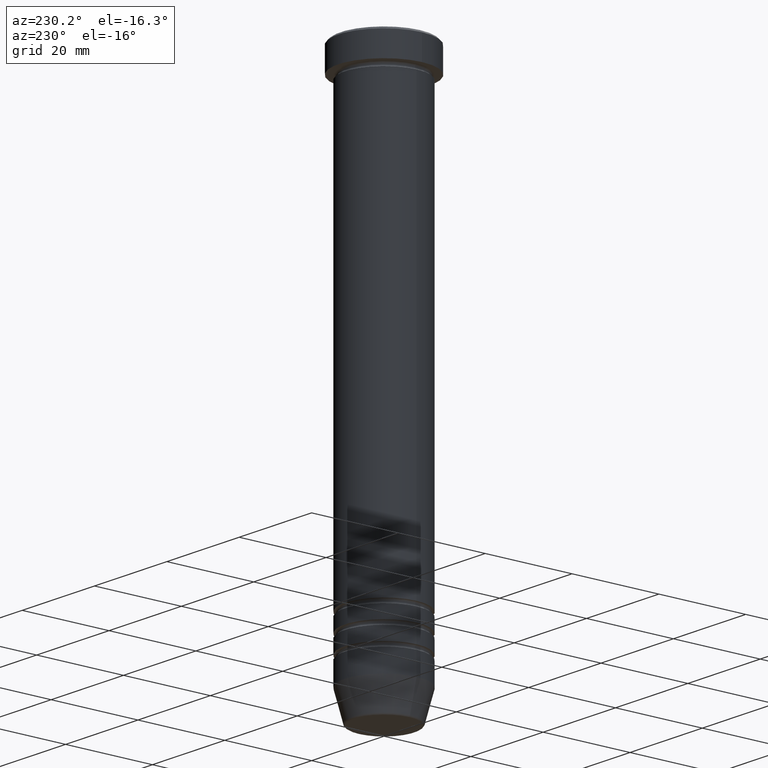
[diagram: clean part render]
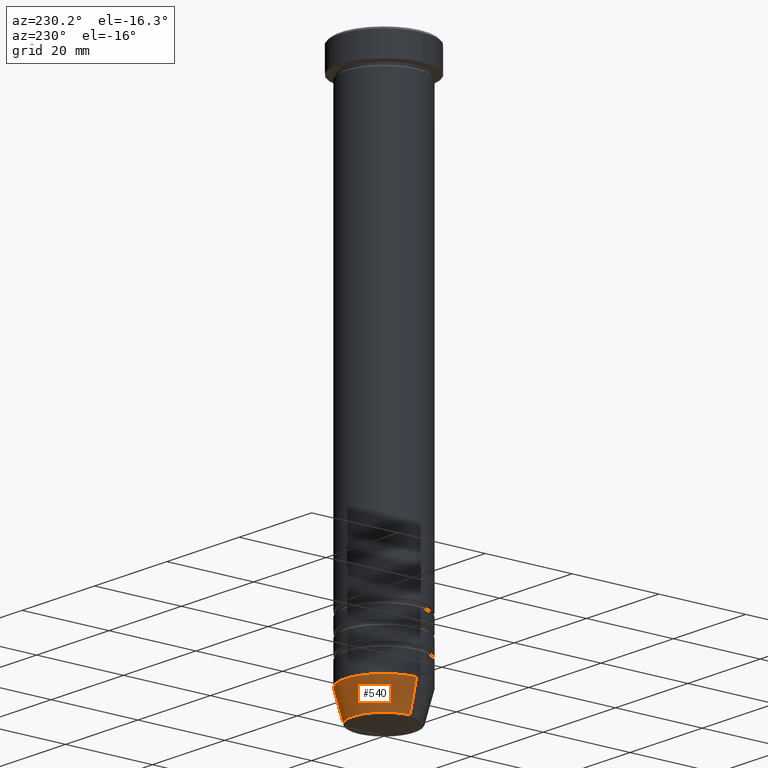
[diagram: same view with one face highlighted and labeled with its STEP entity id]
A machine part, auxiliary view. The second image highlights one B-rep face of the part: STEP entity #540.
In plain terms, the highlighted conical surface has half-angle 15 deg.
Its self-contained STEP definition (entity closure, byte-faithful):
#31 = VERTEX_POINT ( 'NONE', #337 ) ;
#63 = VERTEX_POINT ( 'NONE', #184 ) ;
#90 = LINE ( 'NONE', #726, #328 ) ;
#125 = EDGE_CURVE ( 'NONE', #876, #296, #170, .T. ) ;
#134 = ORIENTED_EDGE ( 'NONE', *, *, #266, .T. ) ;
#170 = CIRCLE ( 'NONE', #1039, 7.223655072137193045 ) ;
#184 = CARTESIAN_POINT ( 'NONE',  ( 9.000000000000000000, 0.000000000000000000, -119.0000000000000000 ) ) ;
#190 = CIRCLE ( 'NONE', #1018, 9.000000000000000000 ) ;
#266 = EDGE_CURVE ( 'NONE', #296, #31, #90, .T. ) ;
#273 = DIRECTION ( 'NONE',  ( -0.000000000000000000, -0.000000000000000000, 1.000000000000000000 ) ) ;
#282 = DIRECTION ( 'NONE',  ( 0.2588190451025213501, 0.000000000000000000, 0.9659258262890680902 ) ) ;
#283 = ORIENTED_EDGE ( 'NONE', *, *, #1128, .F. ) ;
#286 = EDGE_CURVE ( 'NONE', #876, #63, #693, .T. ) ;
#296 = VERTEX_POINT ( 'NONE', #776 ) ;
#328 = VECTOR ( 'NONE', #789, 1000.000000000000000 ) ;
#337 = CARTESIAN_POINT ( 'NONE',  ( -9.000000000000000000, 1.102182119232617714E-15, -119.0000000000000000 ) ) ;
#376 = DIRECTION ( 'NONE',  ( 1.000000000000000000, 0.000000000000000000, 0.000000000000000000 ) ) ;
#407 = DIRECTION ( 'NONE',  ( -0.000000000000000000, -0.000000000000000000, 1.000000000000000000 ) ) ;
#414 = CARTESIAN_POINT ( 'NONE',  ( 0.000000000000000000, 0.000000000000000000, -125.6294095225512564 ) ) ;
#450 = AXIS2_PLACEMENT_3D ( 'NONE', #1103, #649, #376 ) ;
#502 = ORIENTED_EDGE ( 'NONE', *, *, #286, .F. ) ;
#540 = ADVANCED_FACE ( 'NONE', ( #738 ), #558, .T. ) ;
#558 = CONICAL_SURFACE ( 'NONE', #450, 7.124355652982134579, 0.2617993877991500740 ) ;
#624 = DIRECTION ( 'NONE',  ( 1.000000000000000000, 0.000000000000000000, 0.000000000000000000 ) ) ;
#649 = DIRECTION ( 'NONE',  ( -0.000000000000000000, -0.000000000000000000, 1.000000000000000000 ) ) ;
#693 = LINE ( 'NONE', #874, #1093 ) ;
#726 = CARTESIAN_POINT ( 'NONE',  ( -7.124355652982134579, 8.724819346411922144E-16, -126.0000000000000000 ) ) ;
#738 = FACE_OUTER_BOUND ( 'NONE', #946, .T. ) ;
#776 = CARTESIAN_POINT ( 'NONE',  ( -7.223655072137193045, 9.934123627281765110E-16, -125.6294095225512564 ) ) ;
#789 = DIRECTION ( 'NONE',  ( -0.2588190451025213501, 3.169619151431772337E-17, 0.9659258262890680902 ) ) ;
#836 = DIRECTION ( 'NONE',  ( -1.000000000000000000, 0.000000000000000000, 0.000000000000000000 ) ) ;
#874 = CARTESIAN_POINT ( 'NONE',  ( 7.124355652982134579, 0.000000000000000000, -126.0000000000000000 ) ) ;
#876 = VERTEX_POINT ( 'NONE', #1010 ) ;
#939 = ORIENTED_EDGE ( 'NONE', *, *, #125, .T. ) ;
#946 = EDGE_LOOP ( 'NONE', ( #939, #134, #283, #502 ) ) ;
#989 = CARTESIAN_POINT ( 'NONE',  ( 0.000000000000000000, 0.000000000000000000, -119.0000000000000000 ) ) ;
#1010 = CARTESIAN_POINT ( 'NONE',  ( 7.223655072137193045, 0.000000000000000000, -125.6294095225512564 ) ) ;
#1018 = AXIS2_PLACEMENT_3D ( 'NONE', #989, #273, #624 ) ;
#1039 = AXIS2_PLACEMENT_3D ( 'NONE', #414, #407, #836 ) ;
#1093 = VECTOR ( 'NONE', #282, 1000.000000000000000 ) ;
#1103 = CARTESIAN_POINT ( 'NONE',  ( 0.000000000000000000, 0.000000000000000000, -126.0000000000000000 ) ) ;
#1128 = EDGE_CURVE ( 'NONE', #63, #31, #190, .T. ) ;